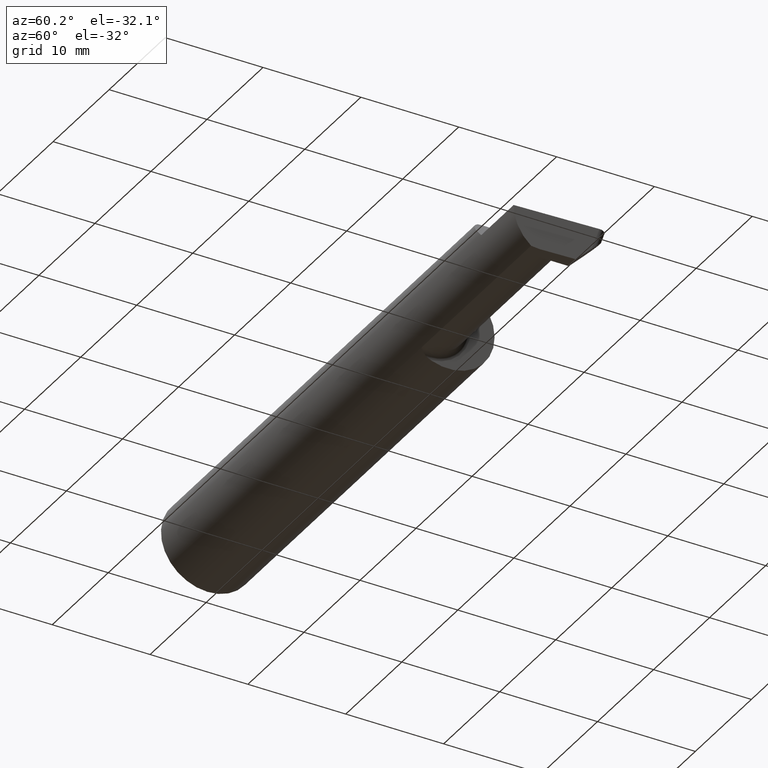
[diagram: clean part render]
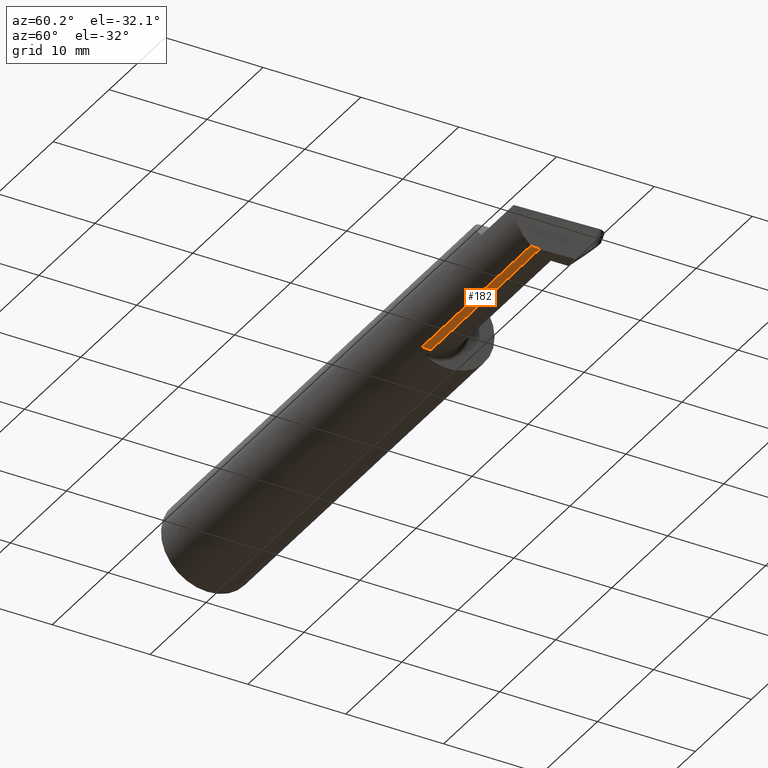
[diagram: same view with one face highlighted and labeled with its STEP entity id]
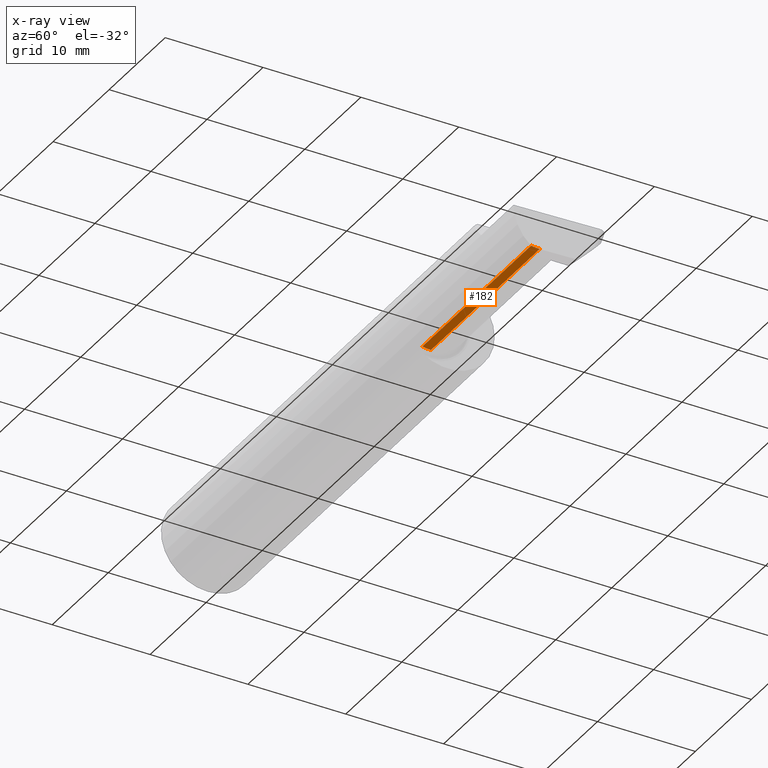
[diagram: x-ray of the same camera — body ghosted, the highlighted face saturated]
A machine part, auxiliary view. The second image highlights one B-rep face of the part: STEP entity #182.
The next image is the same camera in x-ray: the body ghosted, the highlighted face saturated — about 0% of this face is hidden behind the body in this view.
In plain terms, the highlighted cylindrical surface (partial cylindrical patch) has radius 3.81 mm, axis along (-1, -0, -0).
Its self-contained STEP definition (entity closure, byte-faithful):
#16 = EDGE_CURVE ( 'NONE', #352, #790, #615, .T. ) ;
#29 = ORIENTED_EDGE ( 'NONE', *, *, #16, .F. ) ;
#63 = ORIENTED_EDGE ( 'NONE', *, *, #327, .F. ) ;
#71 = CARTESIAN_POINT ( 'NONE',  ( 2.489143054109411057, -0.08335000000000014619, -0.1500000000000000500 ) ) ;
#76 = EDGE_CURVE ( 'NONE', #705, #747, #569, .T. ) ;
#104 = DIRECTION ( 'NONE',  ( -1.000000000000000000, -0.000000000000000000, -0.000000000000000000 ) ) ;
#110 = CARTESIAN_POINT ( 'NONE',  ( 2.489143054109411057, -0.08335000000000014619, -0.1500000000000000500 ) ) ;
#118 = VECTOR ( 'NONE', #446, 39.37007874015748143 ) ;
#125 = ORIENTED_EDGE ( 'NONE', *, *, #759, .F. ) ;
#134 = ORIENTED_EDGE ( 'NONE', *, *, #76, .T. ) ;
#142 = CARTESIAN_POINT ( 'NONE',  ( 2.080930449999999876, -0.1172600179964006784, -0.1461167706989303650 ) ) ;
#163 = CARTESIAN_POINT ( 'NONE',  ( 1.724999999999999867, -0.1172600179964006784, -0.1461167706989303650 ) ) ;
#182 = ADVANCED_FACE ( 'NONE', ( #403 ), #225, .T. ) ;
#193 = AXIS2_PLACEMENT_3D ( 'NONE', #722, #646, #285 ) ;
#199 = CARTESIAN_POINT ( 'NONE',  ( 2.442617647571764028, -0.08334999999999999354, -0.1500000000000000222 ) ) ;
#223 = CARTESIAN_POINT ( 'NONE',  ( 1.724999999999999867, -0.08334999999999997966, -0.1499999999999999944 ) ) ;
#225 = CYLINDRICAL_SURFACE ( 'NONE', #193, 0.1499999999999999944 ) ;
#285 = DIRECTION ( 'NONE',  ( 0.000000000000000000, 0.000000000000000000, 1.000000000000000000 ) ) ;
#314 = VECTOR ( 'NONE', #603, 39.37007874015748143 ) ;
#317 = ORIENTED_EDGE ( 'NONE', *, *, #772, .F. ) ;
#320 = CARTESIAN_POINT ( 'NONE',  ( 2.488744025780163405, -0.09477667630339431382, -0.1499999999999999667 ) ) ;
#327 = EDGE_CURVE ( 'NONE', #790, #633, #486, .T. ) ;
#350 = CARTESIAN_POINT ( 'NONE',  ( 2.488026713523223243, -0.1172600179964006784, -0.1461167706989303650 ) ) ;
#352 = VERTEX_POINT ( 'NONE', #110 ) ;
#353 = CIRCLE ( 'NONE', #539, 0.1499999999999999944 ) ;
#391 = DIRECTION ( 'NONE',  ( -1.000000000000000000, -0.000000000000000000, -0.000000000000000000 ) ) ;
#403 = FACE_OUTER_BOUND ( 'NONE', #661, .T. ) ;
#446 = DIRECTION ( 'NONE',  ( -1.000000000000000000, -0.000000000000000000, -0.000000000000000000 ) ) ;
#475 = VECTOR ( 'NONE', #391, 39.37007874015748143 ) ;
#484 = CARTESIAN_POINT ( 'NONE',  ( 1.724999999999999867, -0.08334999999999999354, 0.000000000000000000 ) ) ;
#486 = LINE ( 'NONE', #549, #314 ) ;
#504 =( BOUNDED_CURVE ( )  B_SPLINE_CURVE ( 3, ( #753, #632, #320, #71 ),
 .UNSPECIFIED., .F., .F. ) 
 B_SPLINE_CURVE_WITH_KNOTS ( ( 4, 4 ),
 ( 0.8789888184544035754, 1.107026853503846553 ),
 .UNSPECIFIED. ) 
 CURVE ( )  GEOMETRIC_REPRESENTATION_ITEM ( )  RATIONAL_B_SPLINE_CURVE ( ( 1.000000000000000000, 0.9956712472009929815, 0.9956712472009929815, 1.000000000000000000 ) ) 
 REPRESENTATION_ITEM ( '' )  );
#539 = AXIS2_PLACEMENT_3D ( 'NONE', #484, #104, #737 ) ;
#549 = CARTESIAN_POINT ( 'NONE',  ( 1.699999999999999956, -0.08334999999999997966, -0.1499999999999999944 ) ) ;
#569 = LINE ( 'NONE', #142, #475 ) ;
#603 = DIRECTION ( 'NONE',  ( -1.000000000000000000, -0.000000000000000000, -0.000000000000000000 ) ) ;
#615 = LINE ( 'NONE', #804, #118 ) ;
#632 = CARTESIAN_POINT ( 'NONE',  ( 2.488370294460939824, -0.1061291577212409576, -0.1486999626928446061 ) ) ;
#633 = VERTEX_POINT ( 'NONE', #223 ) ;
#646 = DIRECTION ( 'NONE',  ( -1.000000000000000000, -0.000000000000000000, -0.000000000000000000 ) ) ;
#661 = EDGE_LOOP ( 'NONE', ( #63, #29, #317, #134, #125 ) ) ;
#705 = VERTEX_POINT ( 'NONE', #350 ) ;
#722 = CARTESIAN_POINT ( 'NONE',  ( 1.699999999999999956, -0.08334999999999999354, 0.000000000000000000 ) ) ;
#737 = DIRECTION ( 'NONE',  ( 0.000000000000000000, 0.000000000000000000, 1.000000000000000000 ) ) ;
#747 = VERTEX_POINT ( 'NONE', #163 ) ;
#753 = CARTESIAN_POINT ( 'NONE',  ( 2.488026713523223243, -0.1172600179964006784, -0.1461167706989303650 ) ) ;
#759 = EDGE_CURVE ( 'NONE', #633, #747, #353, .T. ) ;
#772 = EDGE_CURVE ( 'NONE', #705, #352, #504, .T. ) ;
#790 = VERTEX_POINT ( 'NONE', #199 ) ;
#804 = CARTESIAN_POINT ( 'NONE',  ( 2.733184360054361939, -0.08335000000000014619, -0.1500000000000000500 ) ) ;